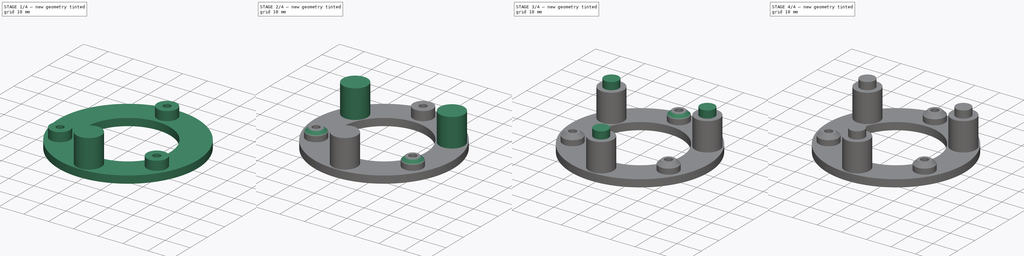
[diagram: build sequence overview — one tinted view per stage of 4, left to right]
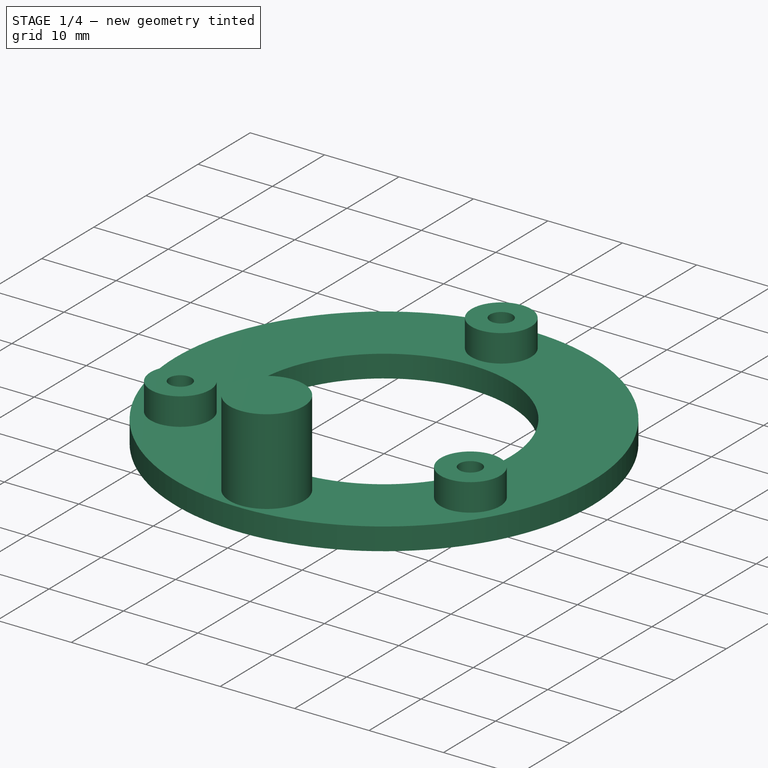
[diagram: stage 1 of 4 — iso view after this stage's code; geometry added in this stage tinted green]
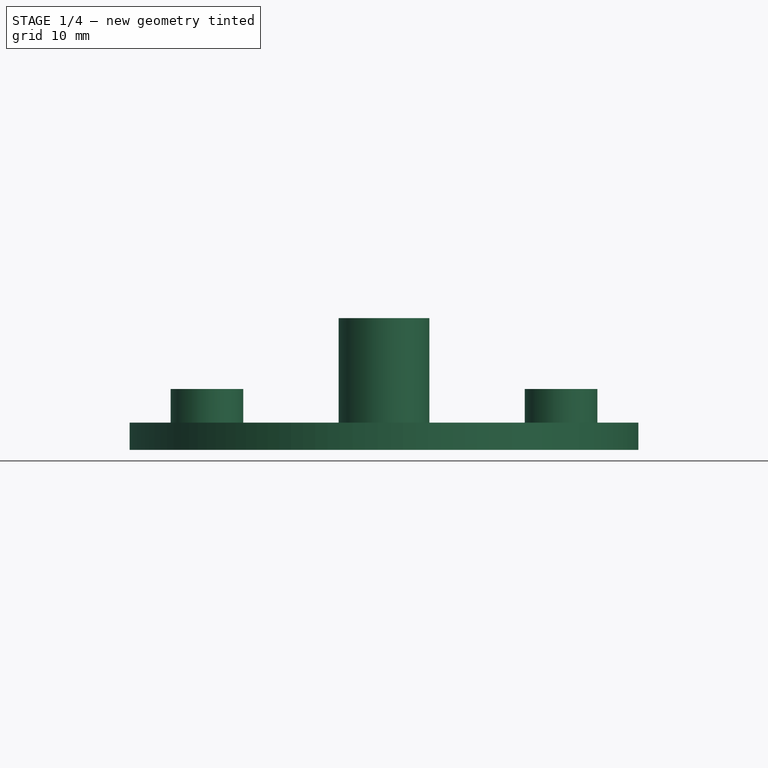
[diagram: stage 1 of 4 — front view after this stage's code; geometry added in this stage tinted green]
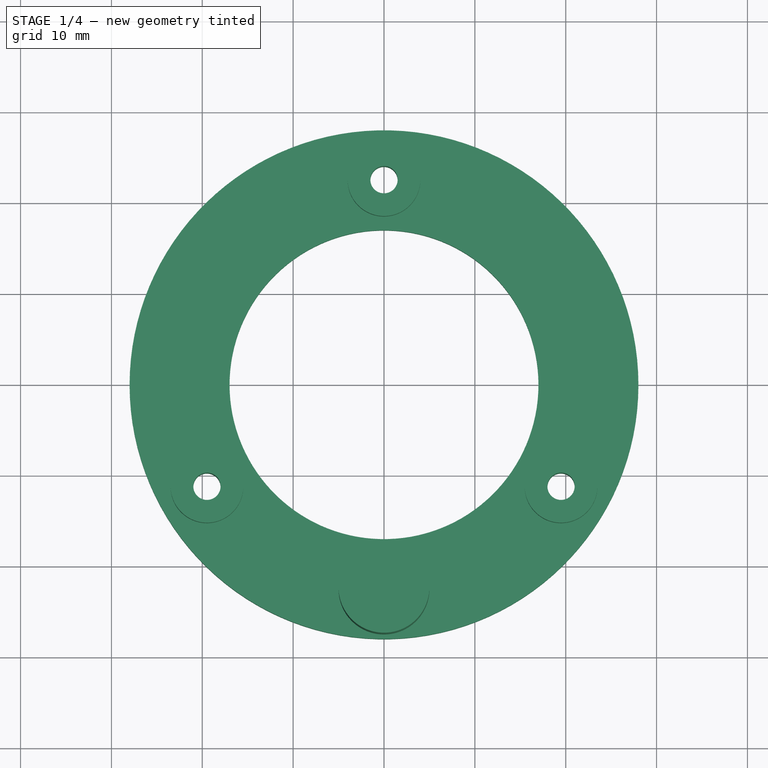
[diagram: stage 1 of 4 — top view after this stage's code; geometry added in this stage tinted green]
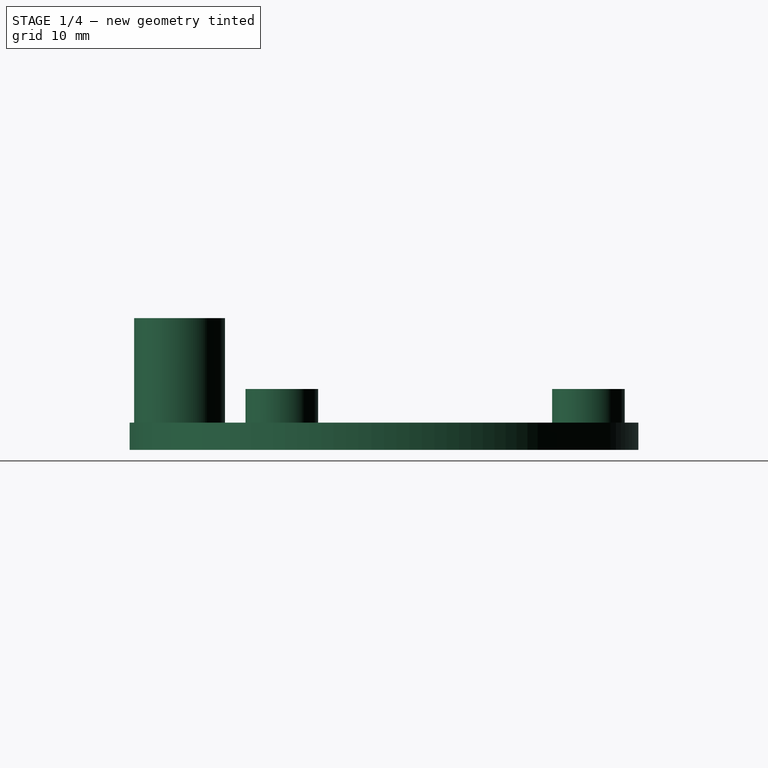
[diagram: stage 1 of 4 — right view after this stage's code; geometry added in this stage tinted green]
FCSTD DOCUMENT  (FreeCAD 0.16R6706 (Git))
Label: CarrierAV2
License: All rights reserved
LicenseURL: http://en.wikipedia.org/wiki/All_rights_reserved
objects: Sketcher::SketchObject×7, PartDesign::Pad×4, PartDesign::PolarPattern×4, PartDesign::Pocket×3, PartDesign::Chamfer×3
note: 28 computed .brp shape members not serialized (recipe doc carries the construction recipe); baked Part::Feature solids carry a one-line shape summary decoded from their .brp

FEATURE [Sketcher::SketchObject] Sketch  label="BaseDisk"
  Placement = pos=(0,0,25) rot=(0,0,1;0rad)
  sketch-geometry (12):
    g0: Circle [constr] CenterX=0 CenterY=0 CenterZ=0 NormalX=0 NormalY=0 NormalZ=1 Radius=22.5
    g1: LineSegment [constr] StartX=0 StartY=0 StartZ=0 EndX=-19.4856 EndY=-11.25 EndZ=0
    g2: LineSegment [constr] StartX=0 StartY=0 StartZ=0 EndX=19.4856 EndY=-11.25 EndZ=0
    g3: LineSegment [constr] StartX=0 StartY=0 StartZ=0 EndX=0 EndY=22.5 EndZ=0
    g4: Circle [constr] CenterX=0 CenterY=22.5 CenterZ=0 NormalX=0 NormalY=0 NormalZ=1 Radius=1.6
    g5: Circle [constr] CenterX=-19.4856 CenterY=-11.25 CenterZ=0 NormalX=0 NormalY=0 NormalZ=1 Radius=1.6
    g6: Circle [constr] CenterX=19.4856 CenterY=-11.25 CenterZ=0 NormalX=0 NormalY=0 NormalZ=1 Radius=1.6
    g7: Circle CenterX=0 CenterY=0 CenterZ=0 NormalX=0 NormalY=0 NormalZ=1 Radius=17
    g8: Circle CenterX=0 CenterY=0 CenterZ=0 NormalX=0 NormalY=0 NormalZ=1 Radius=28
    g9: LineSegment [constr] StartX=0 StartY=0 StartZ=0 EndX=-24.2487 EndY=14 EndZ=0
    g10: LineSegment [constr] StartX=0 StartY=0 StartZ=0 EndX=24.2487 EndY=14 EndZ=0
    g11: LineSegment [constr] StartX=0 StartY=0 StartZ=0 EndX=0 EndY=-28 EndZ=0
  constraints (30):
    c: Coincident(g0,g-1)
    c: Radius(g0) = 22.5
    c: Coincident(g1,g-1)
    c: PointOnObject(g1,g0)
    c: Coincident(g2,g-1)
    c: PointOnObject(g2,g0)
    c: Angle(g1,g2) = 2.0944
    c: Coincident(g3,g-1)
    c: PointOnObject(g3,g0)
    c: Vertical(g3)
    c: Angle(g2,g3) = 2.0944
    c: Coincident(g4,g3)
    c: Coincident(g5,g1)
    c: Coincident(g6,g2)
    c: Coincident(g7,g-1)
    c: Radius(g6) = 1.6
    c: Equal(g6,g4)
    c: Equal(g6,g5)
    c: Radius(g7) = 17
    c: Radius(g8) = 28
    c: Coincident(g9,g-1)
    c: PointOnObject(g9,g8)
    c: Coincident(g8,g-1)
    c: Coincident(g10,g-1)
    c: PointOnObject(g10,g8)
    c: Coincident(g11,g-1)
    c: PointOnObject(g11,g8)
    c: Angle(g11,g10) = 2.0944
    c: Angle(g9,g11) = 2.0944
    c: Vertical(g11)
FEATURE [PartDesign::Pad] Pad
  Length = 3
  Length2 = 100
  Placement = pos=(0,0,25) rot=(0,0,1;0rad)
  Sketch = -> Sketch
  Type = 0
FEATURE [Sketcher::SketchObject] Sketch001  label="BearingSupports"
  Placement = pos=(0,0,28) rot=(0,0,1;0rad)
  Support = -> Pad [Face4]
  sketch-geometry (10):
    g0: Circle [constr] CenterX=0 CenterY=0 CenterZ=0 NormalX=0 NormalY=0 NormalZ=1 Radius=22.5
    g1: LineSegment [constr] StartX=0 StartY=0 StartZ=0 EndX=0 EndY=22.5 EndZ=0
    g2: LineSegment [constr] StartX=0 StartY=0 StartZ=0 EndX=-19.4856 EndY=-11.25 EndZ=0
    g3: LineSegment [constr] StartX=19.4856 StartY=-11.25 StartZ=0 EndX=0 EndY=0 EndZ=0
    g4: Circle CenterX=0 CenterY=22.5 CenterZ=0 NormalX=0 NormalY=0 NormalZ=1 Radius=4
    g5: Circle [constr] CenterX=0 CenterY=22.5 CenterZ=0 NormalX=0 NormalY=0 NormalZ=1 Radius=1.6
    g6: Circle CenterX=-19.4856 CenterY=-11.25 CenterZ=0 NormalX=0 NormalY=0 NormalZ=1 Radius=4
    g7: Circle [constr] CenterX=-19.4856 CenterY=-11.25 CenterZ=0 NormalX=0 NormalY=0 NormalZ=1 Radius=1.6
    g8: Circle [constr] CenterX=19.4856 CenterY=-11.25 CenterZ=0 NormalX=0 NormalY=0 NormalZ=1 Radius=1.6
    g9: Circle CenterX=19.4856 CenterY=-11.25 CenterZ=0 NormalX=0 NormalY=0 NormalZ=1 Radius=4
  constraints (23):
    c: Coincident(g0,g-1)
    c: Radius(g0) = 22.5
    c: Coincident(g1,g-1)
    c: Vertical(g1)
    c: PointOnObject(g2,g0)
    c: PointOnObject(g3,g0)
    c: Coincident(g3,g-1)
    c: Angle(g2,g3) = 2.0944
    c: Angle(g3,g1) = 2.0944
    c: Coincident(g4,g1)
    c: Coincident(g5,g1)
    c: Radius(g5) = 1.6
    c: Radius(g4) = 4
    c: Coincident(g6,g2)
    c: Radius(g6) = 4
    c: Coincident(g7,g2)
    c: Radius(g7) = 1.6
    c: Coincident(g8,g3)
    c: Radius(g8) = 1.6
    c: Coincident(g9,g3)
    c: Radius(g9) = 4
    c: PointOnObject(g1,g0)
    c: Coincident(g2,g-1)
FEATURE [PartDesign::Pad] Pad001
  Length = 3.7
  Length2 = 100
  Placement = pos=(0,0,25) rot=(0,0,1;0rad)
  Sketch = -> Sketch001
  Type = 0
FEATURE [Sketcher::SketchObject] Sketch003  label="ScrewHoles"
  Placement = pos=(0,0,31.7) rot=(0,0,1;0rad)
  Support = -> Pad001 [Face8]
  sketch-geometry (18):
    g0: Circle [constr] CenterX=0 CenterY=0 CenterZ=0 NormalX=0 NormalY=0 NormalZ=1 Radius=22.5
    g1: LineSegment [constr] StartX=0 StartY=0 StartZ=0 EndX=-19.4856 EndY=-11.25 EndZ=0
    g2: LineSegment [constr] StartX=0 StartY=0 StartZ=0 EndX=19.4856 EndY=-11.25 EndZ=0
    g3: LineSegment [constr] StartX=0 StartY=0 StartZ=0 EndX=0 EndY=22.5 EndZ=0
    g4: Circle CenterX=0 CenterY=22.5 CenterZ=0 NormalX=0 NormalY=0 NormalZ=1 Radius=1.5
    g5: Circle CenterX=-19.4856 CenterY=-11.25 CenterZ=0 NormalX=0 NormalY=0 NormalZ=1 Radius=1.5
    g6: Circle CenterX=19.4856 CenterY=-11.25 CenterZ=0 NormalX=0 NormalY=0 NormalZ=1 Radius=1.5
    g7: Circle [constr] CenterX=0 CenterY=0 CenterZ=0 NormalX=0 NormalY=0 NormalZ=1 Radius=14
    g8: Circle [constr] CenterX=0 CenterY=0 CenterZ=0 NormalX=0 NormalY=0 NormalZ=1 Radius=28
    g9: LineSegment [constr] StartX=0 StartY=0 StartZ=0 EndX=-24.2487 EndY=14 EndZ=0
    g10: LineSegment [constr] StartX=0 StartY=0 StartZ=0 EndX=24.2487 EndY=14 EndZ=0
    g11: LineSegment [constr] StartX=0 StartY=0 StartZ=0 EndX=0 EndY=-28 EndZ=0
    g12: GeomPoint [constr] X=-19.4856 Y=11.25 Z=0
    g13: GeomPoint [constr] X=19.4856 Y=11.25 Z=0
    g14: GeomPoint [constr] X=0 Y=-22.5 Z=0
    g15: Circle [constr] CenterX=-19.4856 CenterY=11.25 CenterZ=0 NormalX=0 NormalY=0 NormalZ=1 Radius=1.5
    g16: Circle [constr] CenterX=19.4856 CenterY=11.25 CenterZ=0 NormalX=0 NormalY=0 NormalZ=1 Radius=1.5
    g17: Circle [constr] CenterX=0 CenterY=-22.5 CenterZ=0 NormalX=0 NormalY=0 NormalZ=1 Radius=1.5
  constraints (42):
    c: Coincident(g0,g-1)
    c: Radius(g0) = 22.5
    c: Coincident(g1,g-1)
    c: PointOnObject(g1,g0)
    c: Coincident(g2,g-1)
    c: PointOnObject(g2,g0)
    c: Angle(g1,g2) = 2.0944
    c: Coincident(g3,g-1)
    c: PointOnObject(g3,g0)
    c: Vertical(g3)
    c: Angle(g2,g3) = 2.0944
    c: Coincident(g4,g3)
    c: Coincident(g5,g1)
    c: Coincident(g6,g2)
    c: Coincident(g7,g-1)
    c: Radius(g6) = 1.5
    c: Equal(g6,g4)
    c: Equal(g6,g5)
    c: Radius(g7) = 14
    c: Radius(g8) = 28
    c: Coincident(g9,g-1)
    c: PointOnObject(g9,g8)
    c: Coincident(g8,g-1)
    c: Coincident(g10,g-1)
    c: PointOnObject(g10,g8)
    c: Coincident(g11,g-1)
    c: PointOnObject(g11,g8)
    c: Angle(g11,g10) = 2.0944
    c: Angle(g9,g11) = 2.0944
    c: Vertical(g11)
    c: PointOnObject(g12,g0)
    c: PointOnObject(g12,g9)
    c: PointOnObject(g13,g0)
    c: PointOnObject(g13,g10)
    c: PointOnObject(g14,g0)
    c: PointOnObject(g14,g11)
    c: Coincident(g15,g12)
    c: Coincident(g16,g13)
    c: Coincident(g17,g14)
    c: Radius(g17) = 1.5
    c: Equal(g17,g16)
    c: Equal(g17,g15)
FEATURE [PartDesign::Pocket] Pocket001
  Length = 3.5
  Placement = pos=(0,0,25) rot=(0,0,1;0rad)
  Sketch = -> Sketch003
  Type = 1
FEATURE [Sketcher::SketchObject] Sketch005  label="Lock"
  Placement = pos=(0,0,28) rot=(0,0,1;0rad)
  Support = -> Pocket001 [Face3]
  sketch-geometry (1):
    g0: Circle CenterX=0 CenterY=-22.5 CenterZ=0 NormalX=0 NormalY=0 NormalZ=1 Radius=5
  constraints (3):
    c: PointOnObject(g0,g-2)
    c: DistanceY(g0,g-1) = 22.5
    c: Radius(g0) = 5
FEATURE [PartDesign::Pad] Pad002
  Length = 11.5
  Length2 = 100
  Placement = pos=(0,0,25) rot=(0,0,1;0rad)
  Sketch = -> Sketch005
  Type = 0
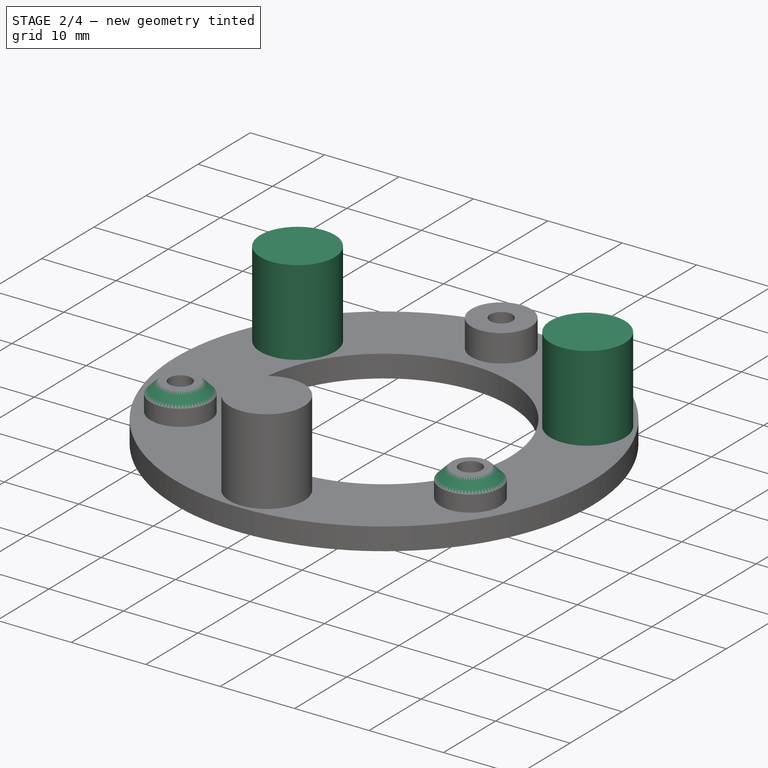
[diagram: stage 2 of 4 — iso view after this stage's code; geometry added in this stage tinted green]
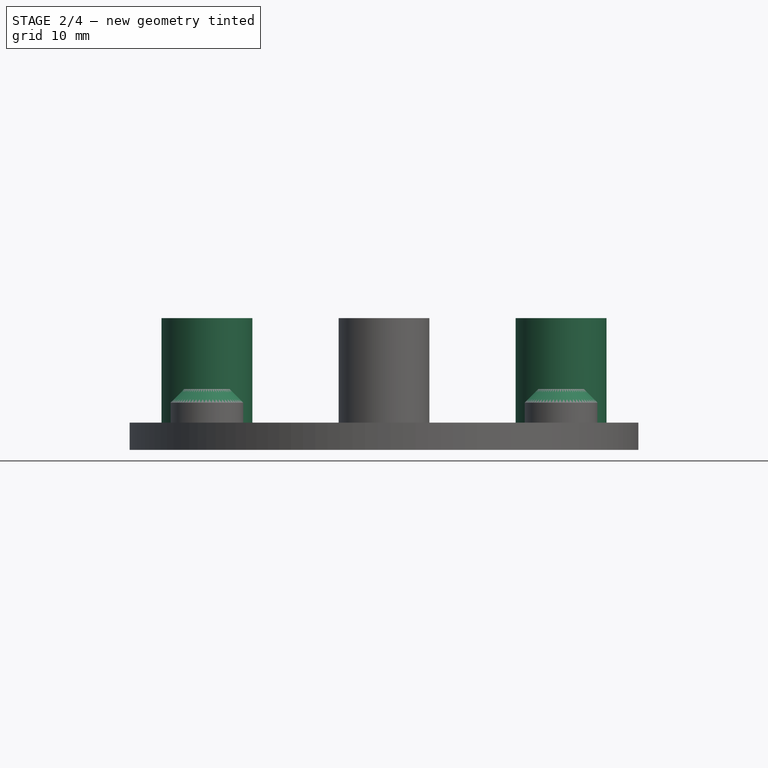
[diagram: stage 2 of 4 — front view after this stage's code; geometry added in this stage tinted green]
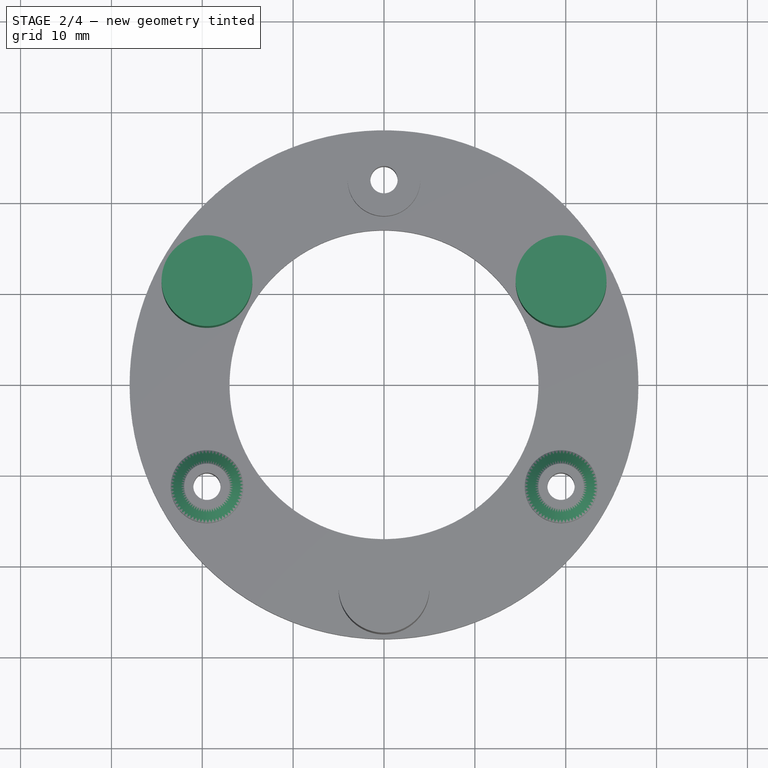
[diagram: stage 2 of 4 — top view after this stage's code; geometry added in this stage tinted green]
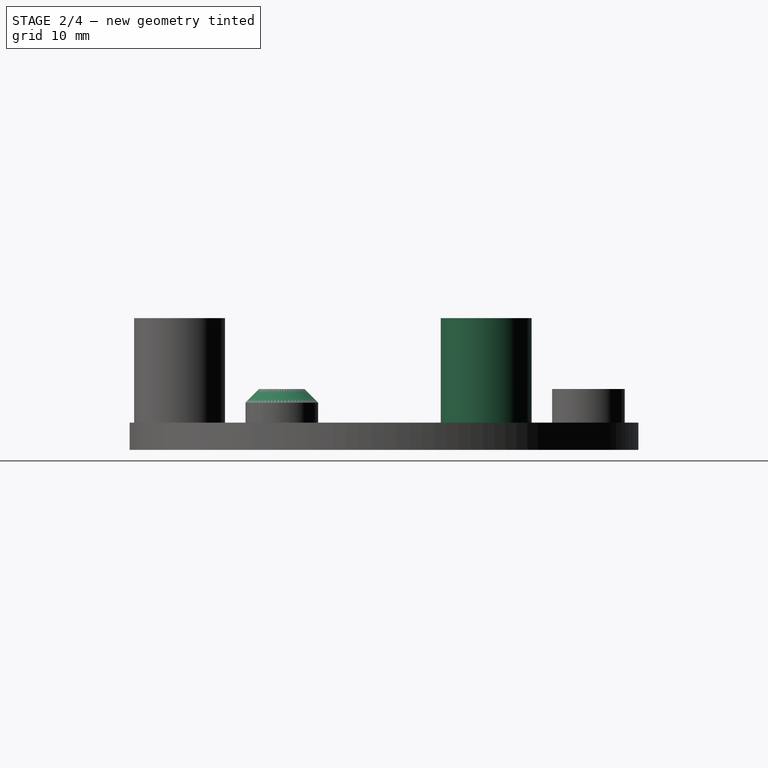
[diagram: stage 2 of 4 — right view after this stage's code; geometry added in this stage tinted green]
FEATURE [PartDesign::PolarPattern] PolarPattern
  Angle = 360
  Axis = -> Sketch005 [N_Axis]
  Occurrences = 3
  Originals = -> [Pad002]
  Placement = pos=(0,0,25) rot=(0,0,1;0rad)
FEATURE [PartDesign::Chamfer] Chamfer
  Base = -> PolarPattern [Edge29]
  Placement = pos=(0,0,25) rot=(0,0,1;0rad)
  Size = 1.5
FEATURE [PartDesign::Chamfer] Chamfer001
  Base = -> Chamfer [Edge17]
  Placement = pos=(0,0,25) rot=(0,0,1;0rad)
  Size = 1.5
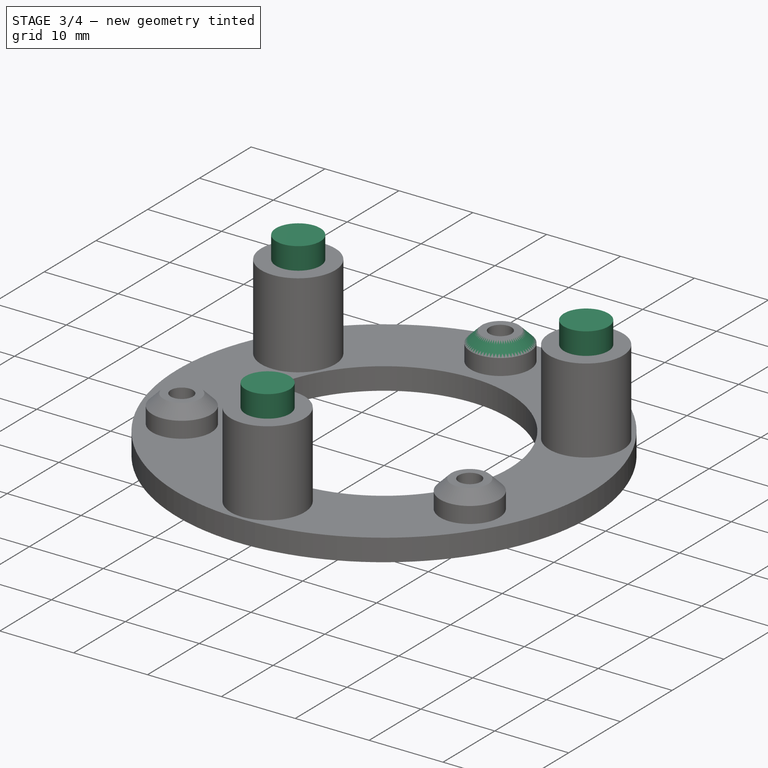
[diagram: stage 3 of 4 — iso view after this stage's code; geometry added in this stage tinted green]
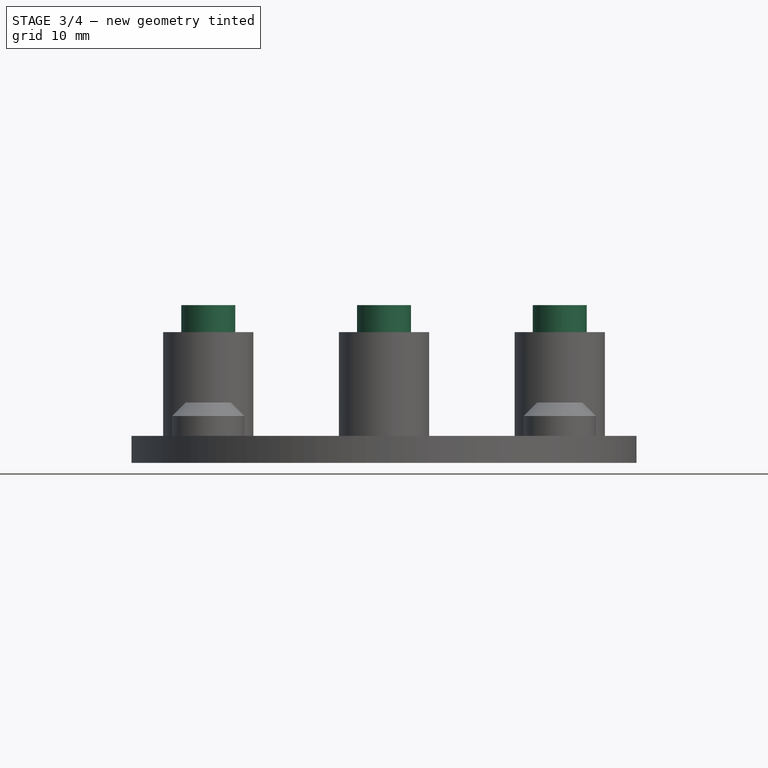
[diagram: stage 3 of 4 — front view after this stage's code; geometry added in this stage tinted green]
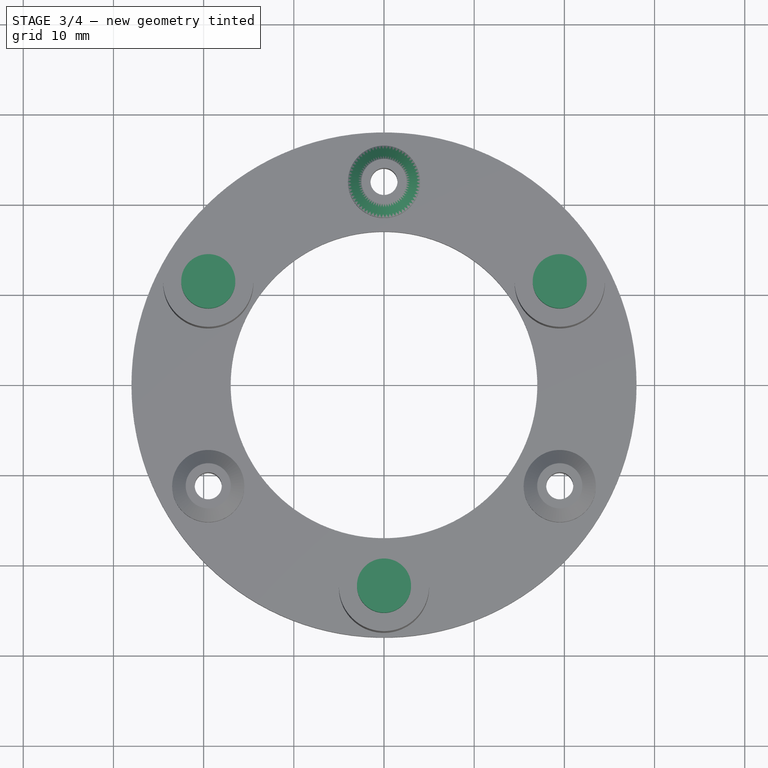
[diagram: stage 3 of 4 — top view after this stage's code; geometry added in this stage tinted green]
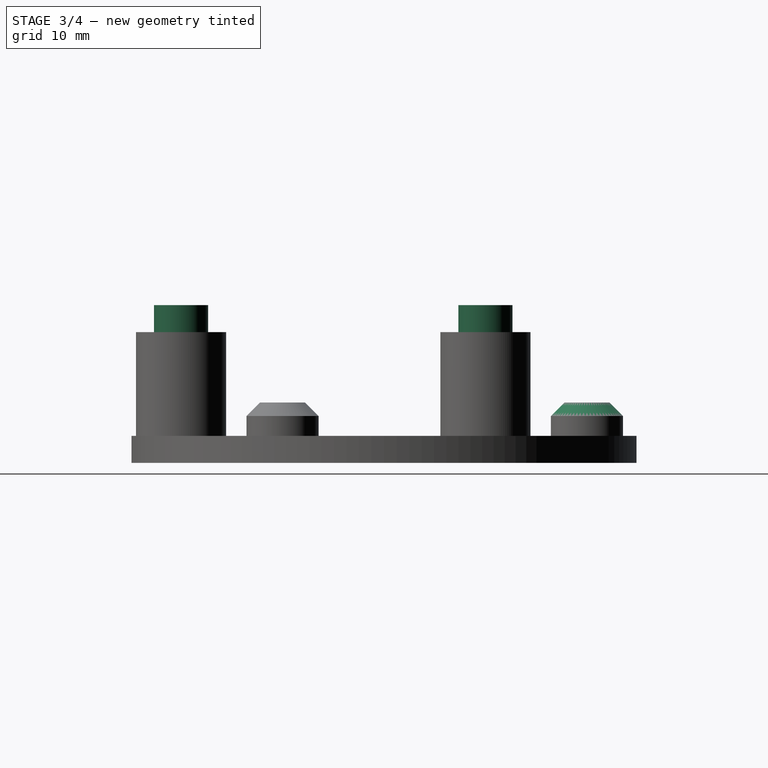
[diagram: stage 3 of 4 — right view after this stage's code; geometry added in this stage tinted green]
FEATURE [PartDesign::Chamfer] Chamfer002
  Base = -> Chamfer001 [Edge19]
  Placement = pos=(0,0,25) rot=(0,0,1;0rad)
  Size = 1.5
FEATURE [Sketcher::SketchObject] Sketch006
  Placement = pos=(0,0,39.5) rot=(0,0,1;0rad)
  Support = -> Chamfer002 [Face17]
  sketch-geometry (2):
    g0: Circle CenterX=0 CenterY=-22.5 CenterZ=0 NormalX=0 NormalY=0 NormalZ=1 Radius=3
    g1: Circle [constr] CenterX=0 CenterY=22.5 CenterZ=0 NormalX=0 NormalY=0 NormalZ=1 Radius=15.5
  constraints (6):
    c: PointOnObject(g0,g-2)
    c: DistanceY(g0,g-1) = 22.5
    c: Radius(g0) = 3
    c: Radius(g1) = 15.5
    c: PointOnObject(g1,g-2)
    c: DistanceY(g-1,g1) = 22.5
FEATURE [PartDesign::Pad] Pad003
  Length = 3
  Length2 = 100
  Placement = pos=(0,0,25) rot=(0,0,1;0rad)
  Sketch = -> Sketch006
  Type = 0
FEATURE [PartDesign::PolarPattern] PolarPattern001  label="Guides"
  Angle = 360
  Axis = -> Sketch006 [N_Axis]
  Occurrences = 3
  Originals = -> [Pad003]
  Placement = pos=(0,0,25) rot=(0,0,1;0rad)
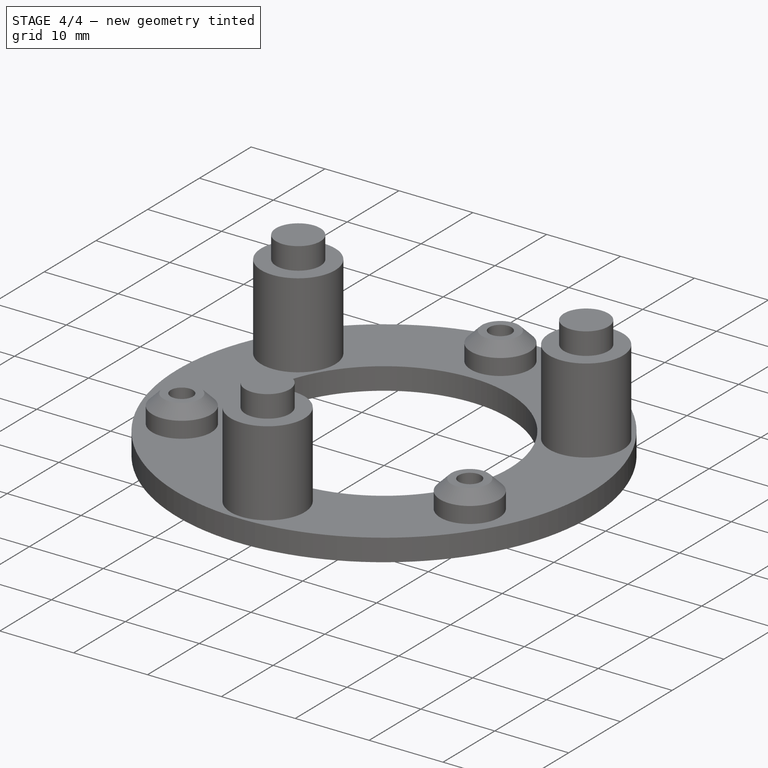
[diagram: stage 4 of 4 — iso view after this stage's code; geometry added in this stage tinted green]
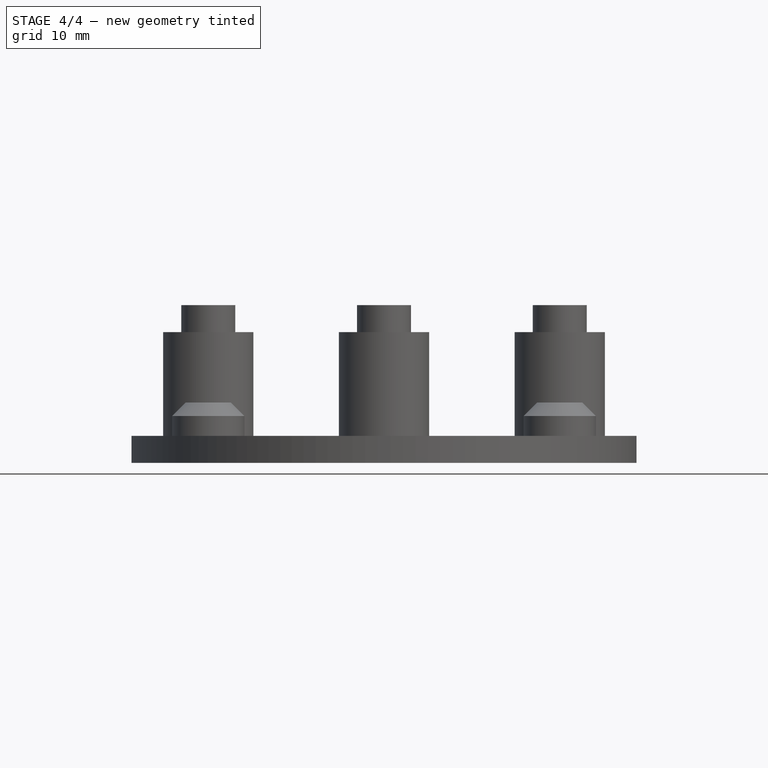
[diagram: stage 4 of 4 — front view after this stage's code; geometry added in this stage tinted green]
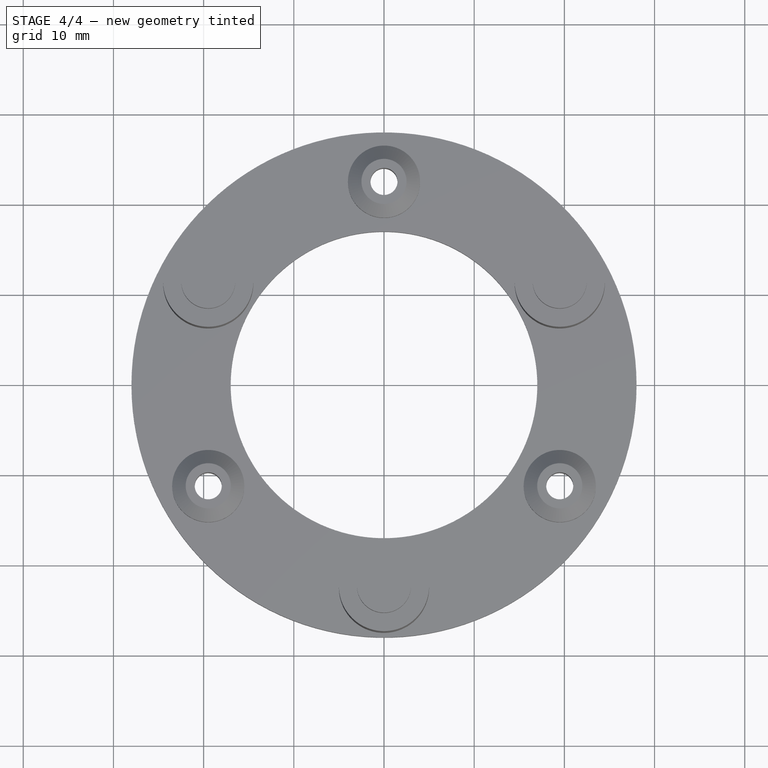
[diagram: stage 4 of 4 — top view after this stage's code; geometry added in this stage tinted green]
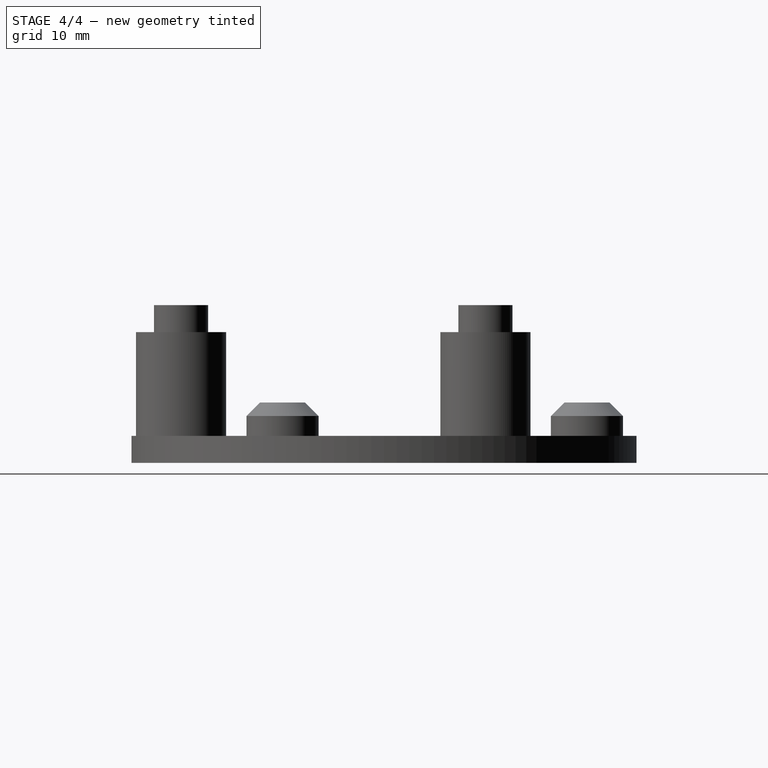
[diagram: stage 4 of 4 — right view after this stage's code; geometry added in this stage tinted green]
FEATURE [Sketcher::SketchObject] Sketch007
  Placement = pos=(0,0,39.5) rot=(0,0,1;0rad)
  Support = -> Chamfer002 [Face18]
  sketch-geometry (1):
    g0: Circle CenterX=0 CenterY=-22.5 CenterZ=0 NormalX=0 NormalY=0 NormalZ=1 Radius=3.1
  constraints (3):
    c: PointOnObject(g0,g-2)
    c: DistanceY(g0,g-1) = 22.5
    c: Radius(g0) = 3.1
FEATURE [PartDesign::Pocket] Pocket
  Length = 3.5
  Placement = pos=(0,0,25) rot=(0,0,1;0rad)
  Sketch = -> Sketch007
  Type = 1
FEATURE [PartDesign::PolarPattern] PolarPattern002  label="FinalA"
  Angle = 360
  Axis = -> Sketch007 [N_Axis]
  Occurrences = 3
  Originals = -> [Pocket]
  Placement = pos=(0,0,25) rot=(0,0,1;0rad)
FEATURE [Sketcher::SketchObject] Sketch008
  Placement = pos=(0,0,25) rot=(1,0,0;3.14159rad)
  Support = -> PolarPattern001 [Face13]
  sketch-geometry (1):
    g0: Circle CenterX=0 CenterY=22.5 CenterZ=0 NormalX=0 NormalY=0 NormalZ=1 Radius=3
  constraints (3):
    c: PointOnObject(g0,g-2)
    c: Radius(g0) = 3
    c: DistanceY(g-1,g0) = 22.5
FEATURE [PartDesign::Pocket] Pocket002
  Length = 12
  Placement = pos=(0,0,25) rot=(0,0,1;0rad)
  Sketch = -> Sketch008
  Type = 0
FEATURE [PartDesign::PolarPattern] PolarPattern003  label="FinalB"
  Angle = 360
  Axis = -> Sketch008 [N_Axis]
  Occurrences = 3
  Originals = -> [Pocket002]
  Placement = pos=(0,0,25) rot=(0,0,1;0rad)
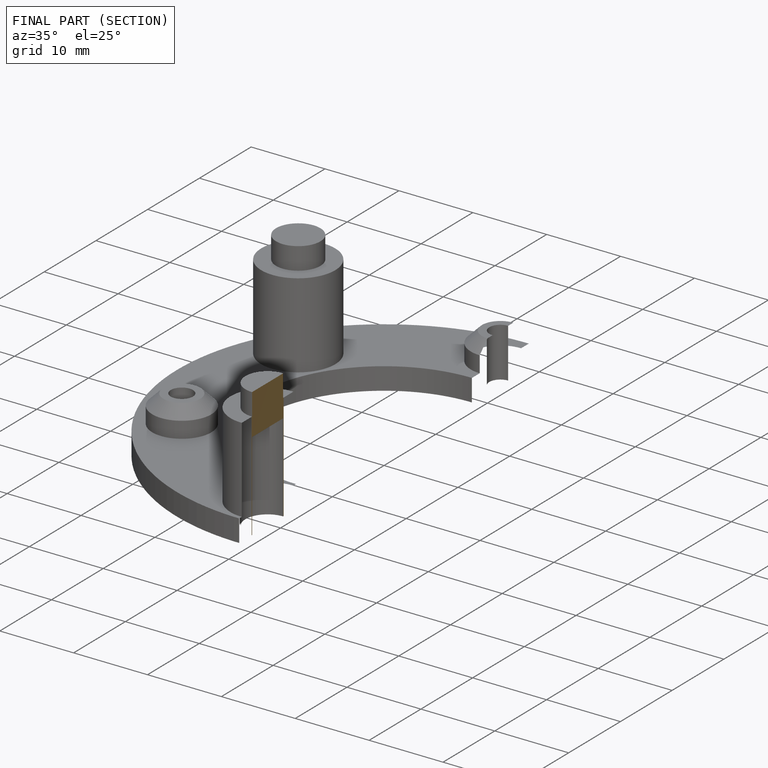
[diagram: finished part — half-section view (interior)]
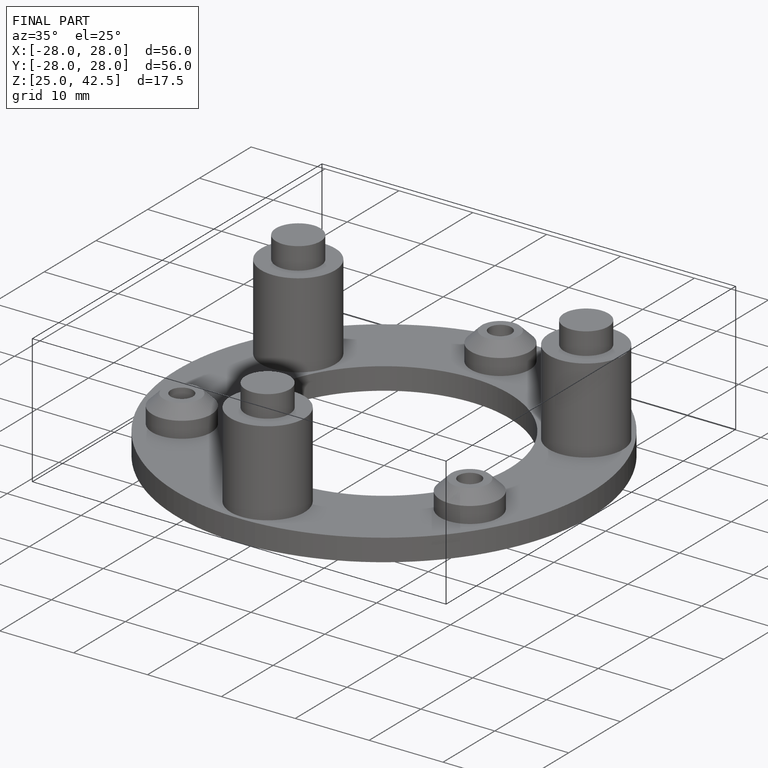
[diagram: finished part — iso view with bounding-box wireframe]
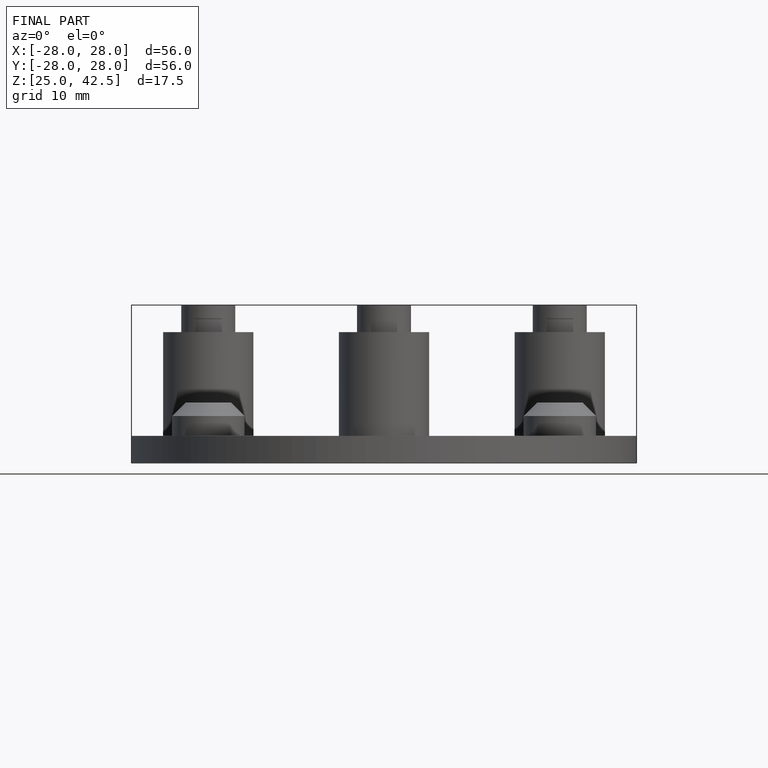
[diagram: finished part — front view with bounding-box wireframe]
